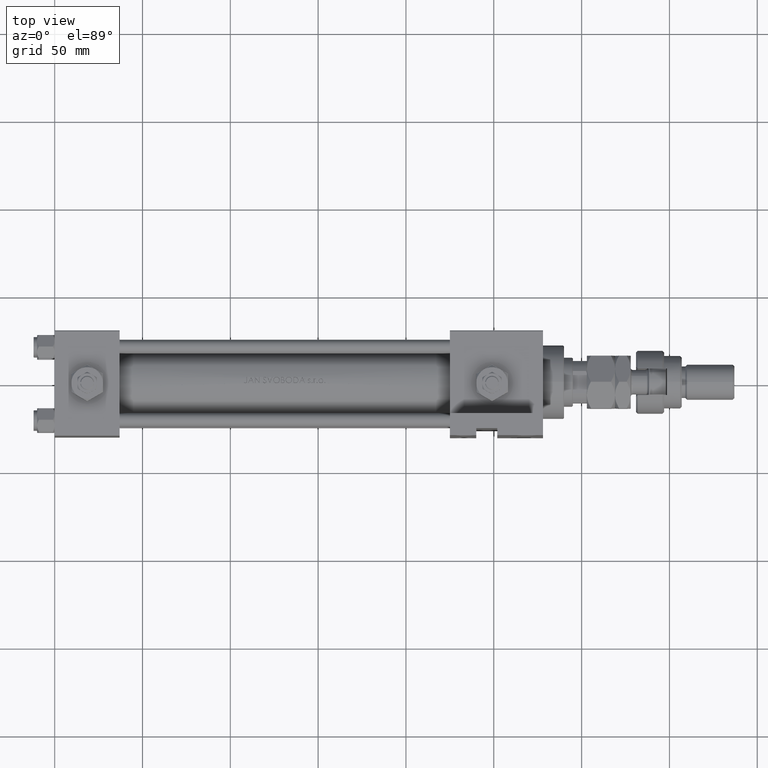
[diagram: clean part render]
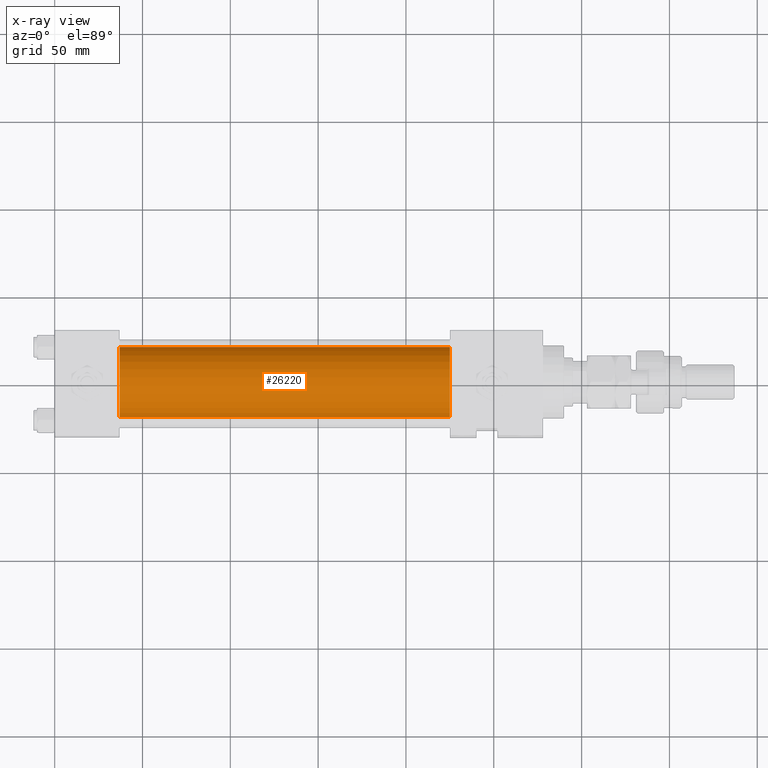
[diagram: x-ray — body ghosted, one internal face saturated and labeled with its STEP entity id]
A machine part, top view, then the same camera in x-ray: the body is ghosted and one INTERNAL B-rep face — a face not visible from any outside direction — is saturated and labeled: STEP entity #26220.
In plain terms, the highlighted cylindrical surface (edge-blend (fillet) strip) has radius 20 mm, axis along (-1, -0, 0).
Its self-contained STEP definition (entity closure, byte-faithful):
#1107 = AXIS2_PLACEMENT_3D ( 'NONE', #38604, #22074, #47810 ) ;
#4630 = CARTESIAN_POINT ( 'NONE',  ( 37.00000000000000000, 2.326828918379970970E-15, -19.00000000000000000 ) ) ;
#7302 = DIRECTION ( 'NONE',  ( -1.000000000000000000, -0.000000000000000000, -0.000000000000000000 ) ) ;
#7545 = AXIS2_PLACEMENT_3D ( 'NONE', #43115, #22519, #25516 ) ;
#12173 = DIRECTION ( 'NONE',  ( -1.000000000000000000, -0.000000000000000000, -0.000000000000000000 ) ) ;
#12683 = CARTESIAN_POINT ( 'NONE',  ( 225.0000000000000000, -1.224646799147354686E-16, 21.00000000000000000 ) ) ;
#15271 = EDGE_LOOP ( 'NONE', ( #39904, #41165, #35859, #33156 ) ) ;
#15328 = EDGE_CURVE ( 'NONE', #50793, #23134, #41298, .T. ) ;
#16248 = CYLINDRICAL_SURFACE ( 'NONE', #44057, 20.00000000000000000 ) ;
#16766 = DIRECTION ( 'NONE',  ( -1.000000000000000000, -0.000000000000000000, -0.000000000000000000 ) ) ;
#20741 = VECTOR ( 'NONE', #16766, 1000.000000000000000 ) ;
#22074 = DIRECTION ( 'NONE',  ( 1.000000000000000000, 0.000000000000000000, 0.000000000000000000 ) ) ;
#22519 = DIRECTION ( 'NONE',  ( 1.000000000000000000, 0.000000000000000000, 0.000000000000000000 ) ) ;
#23134 = VERTEX_POINT ( 'NONE', #4630 ) ;
#23565 = VERTEX_POINT ( 'NONE', #51450 ) ;
#25191 = FACE_OUTER_BOUND ( 'NONE', #15271, .T. ) ;
#25271 = VERTEX_POINT ( 'NONE', #36944 ) ;
#25516 = DIRECTION ( 'NONE',  ( 0.000000000000000000, 0.000000000000000000, -1.000000000000000000 ) ) ;
#26220 = ADVANCED_FACE ( 'NONE', ( #25191 ), #16248, .F. ) ;
#27919 = LINE ( 'NONE', #44465, #37844 ) ;
#33156 = ORIENTED_EDGE ( 'NONE', *, *, #40615, .F. ) ;
#35859 = ORIENTED_EDGE ( 'NONE', *, *, #15328, .F. ) ;
#35915 = EDGE_CURVE ( 'NONE', #25271, #23134, #27919, .T. ) ;
#36944 = CARTESIAN_POINT ( 'NONE',  ( 225.0000000000000000, 2.326828918379970970E-15, -19.00000000000000000 ) ) ;
#37844 = VECTOR ( 'NONE', #7302, 1000.000000000000000 ) ;
#37940 = DIRECTION ( 'NONE',  ( 0.000000000000000000, 0.000000000000000000, 1.000000000000000000 ) ) ;
#38604 = CARTESIAN_POINT ( 'NONE',  ( 225.0000000000000000, -1.224646799147354686E-16, 1.000000000000000888 ) ) ;
#39904 = ORIENTED_EDGE ( 'NONE', *, *, #51083, .T. ) ;
#40615 = EDGE_CURVE ( 'NONE', #23565, #50793, #46070, .T. ) ;
#41165 = ORIENTED_EDGE ( 'NONE', *, *, #35915, .T. ) ;
#41298 = CIRCLE ( 'NONE', #7545, 20.00000000000000000 ) ;
#43115 = CARTESIAN_POINT ( 'NONE',  ( 37.00000000000000000, -1.224646799147354686E-16, 1.000000000000000888 ) ) ;
#44057 = AXIS2_PLACEMENT_3D ( 'NONE', #45279, #12173, #37940 ) ;
#44465 = CARTESIAN_POINT ( 'NONE',  ( 225.0000000000000000, 2.326828918379970970E-15, -19.00000000000000000 ) ) ;
#45279 = CARTESIAN_POINT ( 'NONE',  ( 225.0000000000000000, -1.224646799147354686E-16, 1.000000000000000888 ) ) ;
#46070 = LINE ( 'NONE', #12683, #20741 ) ;
#47810 = DIRECTION ( 'NONE',  ( 0.000000000000000000, 0.000000000000000000, -1.000000000000000000 ) ) ;
#47850 = CIRCLE ( 'NONE', #1107, 20.00000000000000000 ) ;
#49229 = CARTESIAN_POINT ( 'NONE',  ( 37.00000000000000000, -1.224646799147354686E-16, 21.00000000000000000 ) ) ;
#50793 = VERTEX_POINT ( 'NONE', #49229 ) ;
#51083 = EDGE_CURVE ( 'NONE', #23565, #25271, #47850, .T. ) ;
#51450 = CARTESIAN_POINT ( 'NONE',  ( 225.0000000000000000, -1.224646799147354686E-16, 21.00000000000000000 ) ) ;